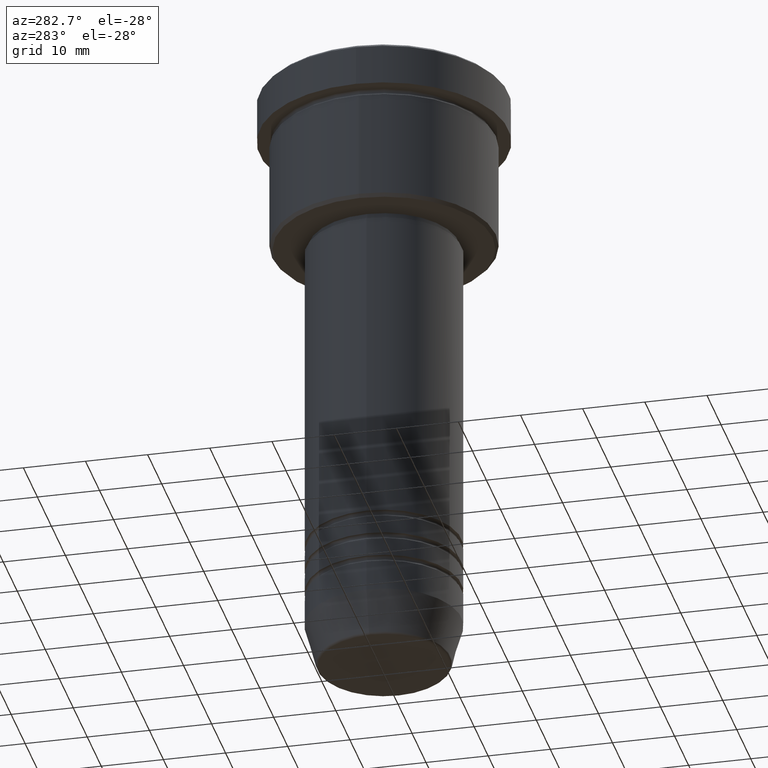
[diagram: clean part render]
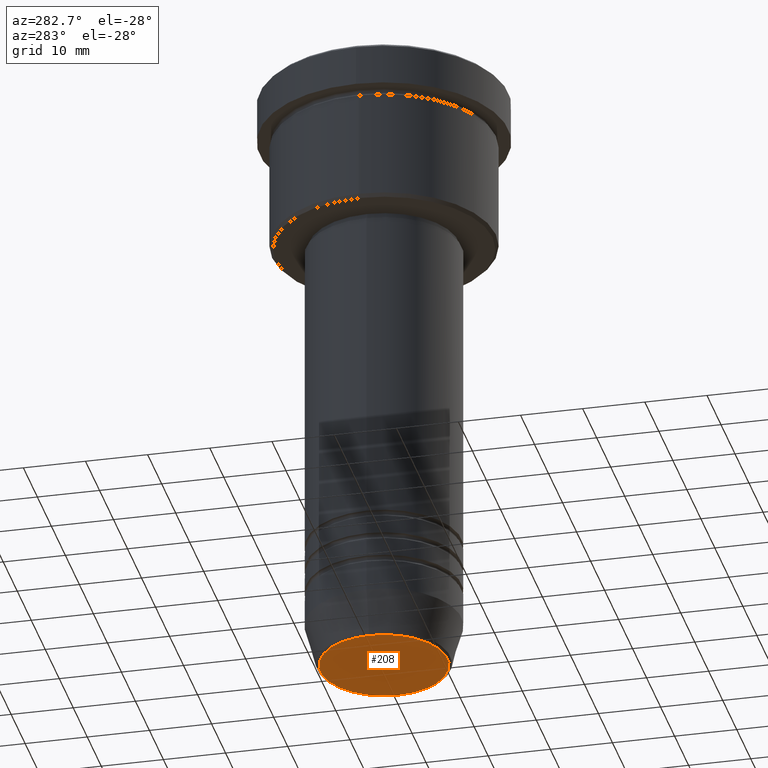
[diagram: same view with one face highlighted and labeled with its STEP entity id]
A machine part, auxiliary view. The second image highlights one B-rep face of the part: STEP entity #208.
In plain terms, the highlighted planar face has unit normal (0, -0, 1).
Its self-contained STEP definition (entity closure, byte-faithful):
#27 = CIRCLE ( 'NONE', #932, 10.24069215899265473 ) ;
#85 = ORIENTED_EDGE ( 'NONE', *, *, #448, .T. ) ;
#206 = CIRCLE ( 'NONE', #872, 10.24069215899265473 ) ;
#208 = ADVANCED_FACE ( 'NONE', ( #507 ), #768, .F. ) ;
#256 = DIRECTION ( 'NONE',  ( 0.000000000000000000, 0.000000000000000000, -1.000000000000000000 ) ) ;
#289 = CARTESIAN_POINT ( 'NONE',  ( 0.000000000000000000, 0.000000000000000000, -100.0000000000000000 ) ) ;
#341 = VERTEX_POINT ( 'NONE', #844 ) ;
#448 = EDGE_CURVE ( 'NONE', #825, #341, #206, .T. ) ;
#481 = DIRECTION ( 'NONE',  ( 0.000000000000000000, 0.000000000000000000, -1.000000000000000000 ) ) ;
#504 = DIRECTION ( 'NONE',  ( 0.000000000000000000, -0.000000000000000000, 1.000000000000000000 ) ) ;
#507 = FACE_OUTER_BOUND ( 'NONE', #870, .T. ) ;
#650 = EDGE_CURVE ( 'NONE', #341, #825, #27, .T. ) ;
#662 = DIRECTION ( 'NONE',  ( 1.000000000000000000, 0.000000000000000000, 0.000000000000000000 ) ) ;
#768 = PLANE ( 'NONE',  #1114 ) ;
#825 = VERTEX_POINT ( 'NONE', #1107 ) ;
#844 = CARTESIAN_POINT ( 'NONE',  ( 10.24069215899265473, 0.000000000000000000, -100.0000000000000000 ) ) ;
#864 = DIRECTION ( 'NONE',  ( 1.000000000000000000, 0.000000000000000000, 0.000000000000000000 ) ) ;
#870 = EDGE_LOOP ( 'NONE', ( #1177, #85 ) ) ;
#872 = AXIS2_PLACEMENT_3D ( 'NONE', #1057, #256, #975 ) ;
#932 = AXIS2_PLACEMENT_3D ( 'NONE', #289, #481, #662 ) ;
#975 = DIRECTION ( 'NONE',  ( 1.000000000000000000, 0.000000000000000000, 0.000000000000000000 ) ) ;
#1024 = CARTESIAN_POINT ( 'NONE',  ( 0.000000000000000000, 0.000000000000000000, -100.0000000000000000 ) ) ;
#1057 = CARTESIAN_POINT ( 'NONE',  ( 0.000000000000000000, 0.000000000000000000, -100.0000000000000000 ) ) ;
#1107 = CARTESIAN_POINT ( 'NONE',  ( -10.24069215899265473, 1.283696036640841981E-15, -100.0000000000000000 ) ) ;
#1114 = AXIS2_PLACEMENT_3D ( 'NONE', #1024, #504, #864 ) ;
#1177 = ORIENTED_EDGE ( 'NONE', *, *, #650, .T. ) ;